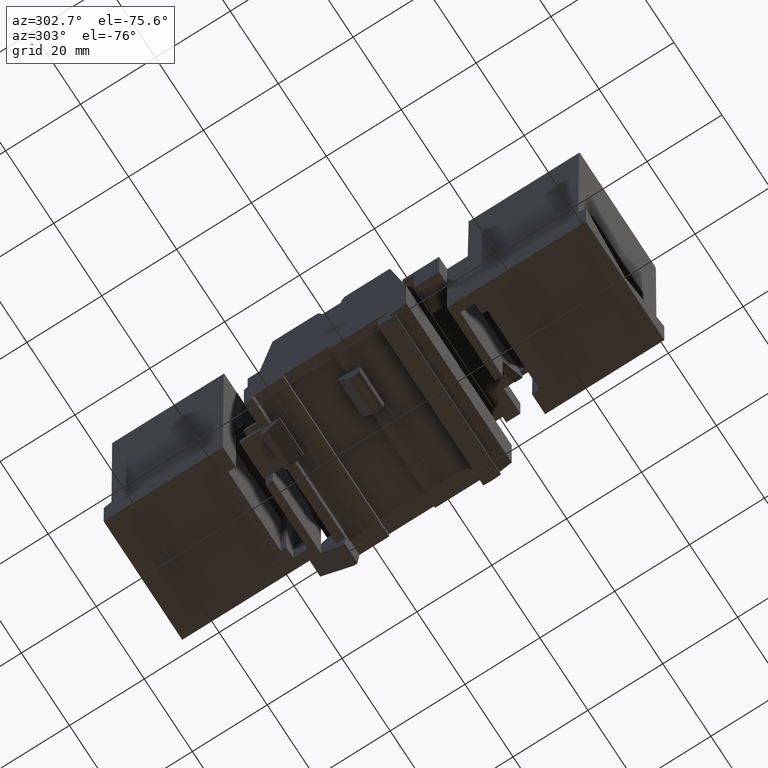
[diagram: clean part render]
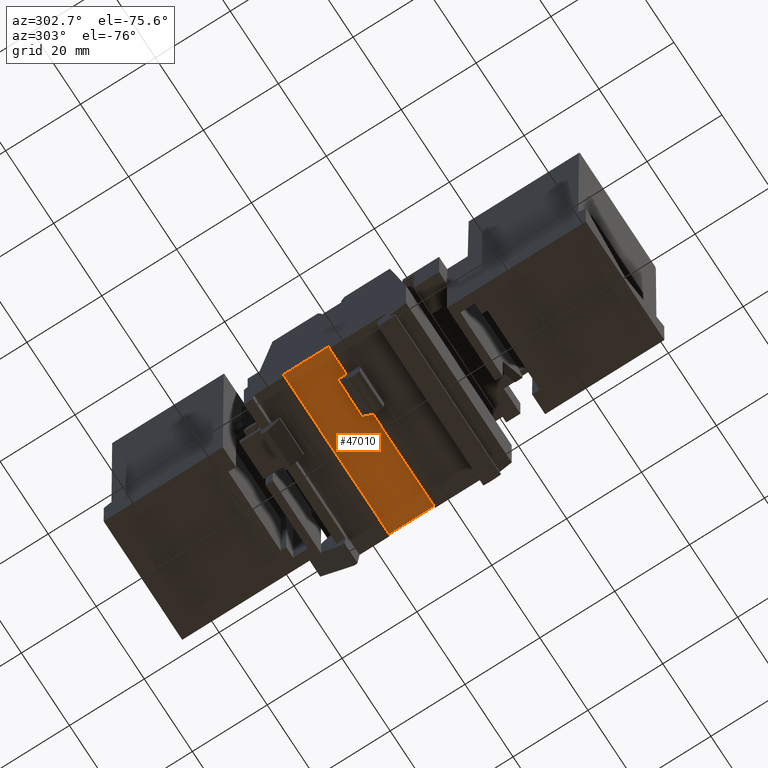
[diagram: same view with one face highlighted and labeled with its STEP entity id]
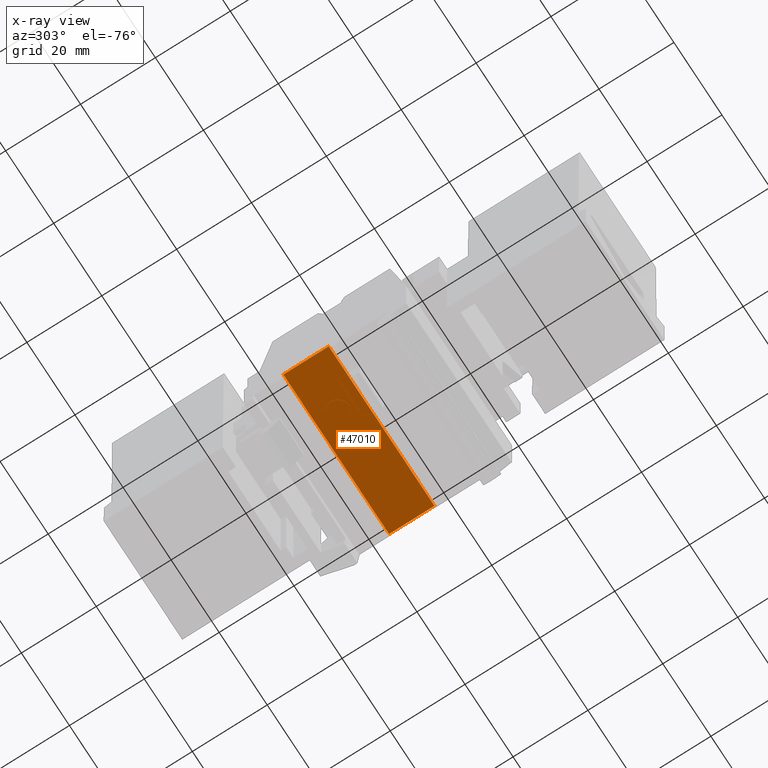
[diagram: x-ray of the same camera — body ghosted, the highlighted face saturated]
A machine part, auxiliary view. The second image highlights one B-rep face of the part: STEP entity #47010.
The next image is the same camera in x-ray: the body ghosted, the highlighted face saturated — about 0% of this face is hidden behind the body in this view.
In plain terms, the highlighted planar face has unit normal (0, 0, 1).
Its self-contained STEP definition (entity closure, byte-faithful):
#200=CARTESIAN_POINT('',(-160.726946844305,404.651897401777,-20.));
#210=VERTEX_POINT('',#200);
#240=CARTESIAN_POINT('',(-133.376946844305,404.651897401777,-20.));
#250=DIRECTION('',(1.,0.,0.));
#260=VECTOR('',#250,1.);
#270=LINE('',#240,#260);
#280=CARTESIAN_POINT('',(-148.626946844281,404.651897401777,-20.));
#290=VERTEX_POINT('',#280);
#300=EDGE_CURVE('',#210,#290,#270,.T.);
#5070=CARTESIAN_POINT('',(-148.626946844281,404.651897401777,24.));
#5080=VERTEX_POINT('',#5070);
#5110=CARTESIAN_POINT('',(-133.376946844305,404.651897401777,24.));
#5120=DIRECTION('',(1.,0.,0.));
#5130=VECTOR('',#5120,1.);
#5140=LINE('',#5110,#5130);
#5150=CARTESIAN_POINT('',(-160.726946844305,404.651897401777,24.));
#5160=VERTEX_POINT('',#5150);
#5170=EDGE_CURVE('',#5160,#5080,#5140,.T.);
#41590=CARTESIAN_POINT('',(-148.626946844281,404.651897401777,
16.8999999999623));
#41600=VERTEX_POINT('',#41590);
#41770=CARTESIAN_POINT('',(-148.626946844305,404.651897401777,
6.94999999996225));
#41780=VERTEX_POINT('',#41770);
#41810=CARTESIAN_POINT('',(-148.626946844305,404.651897401777,0.));
#41820=DIRECTION('',(0.,0.,-1.));
#41830=VECTOR('',#41820,1.);
#41840=LINE('',#41810,#41830);
#41850=EDGE_CURVE('',#41600,#41780,#41840,.T.);
#46770=CARTESIAN_POINT('',(-148.626946844281,404.651897401777,24.));
#46780=DIRECTION('',(-0.,1.,0.));
#46790=DIRECTION('',(1.,0.,0.));
#46800=AXIS2_PLACEMENT_3D('',#46770,#46780,#46790);
#46810=PLANE('',#46800);
#46820=ORIENTED_EDGE('',*,*,#5170,.F.);
#46830=CARTESIAN_POINT('',(-148.626946844281,404.651897401777,27.4));
#46840=DIRECTION('',(0.,0.,-1.));
#46850=VECTOR('',#46840,1.);
#46860=LINE('',#46830,#46850);
#46870=EDGE_CURVE('',#5080,#41600,#46860,.T.);
#46880=ORIENTED_EDGE('',*,*,#46870,.F.);
#46890=ORIENTED_EDGE('',*,*,#41850,.F.);
#46900=EDGE_CURVE('',#41780,#290,#46860,.T.);
#46910=ORIENTED_EDGE('',*,*,#46900,.F.);
#46920=ORIENTED_EDGE('',*,*,#300,.T.);
#46930=CARTESIAN_POINT('',(-160.726946844305,404.651897401777,27.4));
#46940=DIRECTION('',(0.,0.,-1.));
#46950=VECTOR('',#46940,1.);
#46960=LINE('',#46930,#46950);
#46970=EDGE_CURVE('',#5160,#210,#46960,.T.);
#46980=ORIENTED_EDGE('',*,*,#46970,.T.);
#46990=EDGE_LOOP('',(#46980,#46920,#46910,#46890,#46880,#46820));
#47000=FACE_OUTER_BOUND('',#46990,.T.);
#47010=ADVANCED_FACE('',(#47000),#46810,.F.);